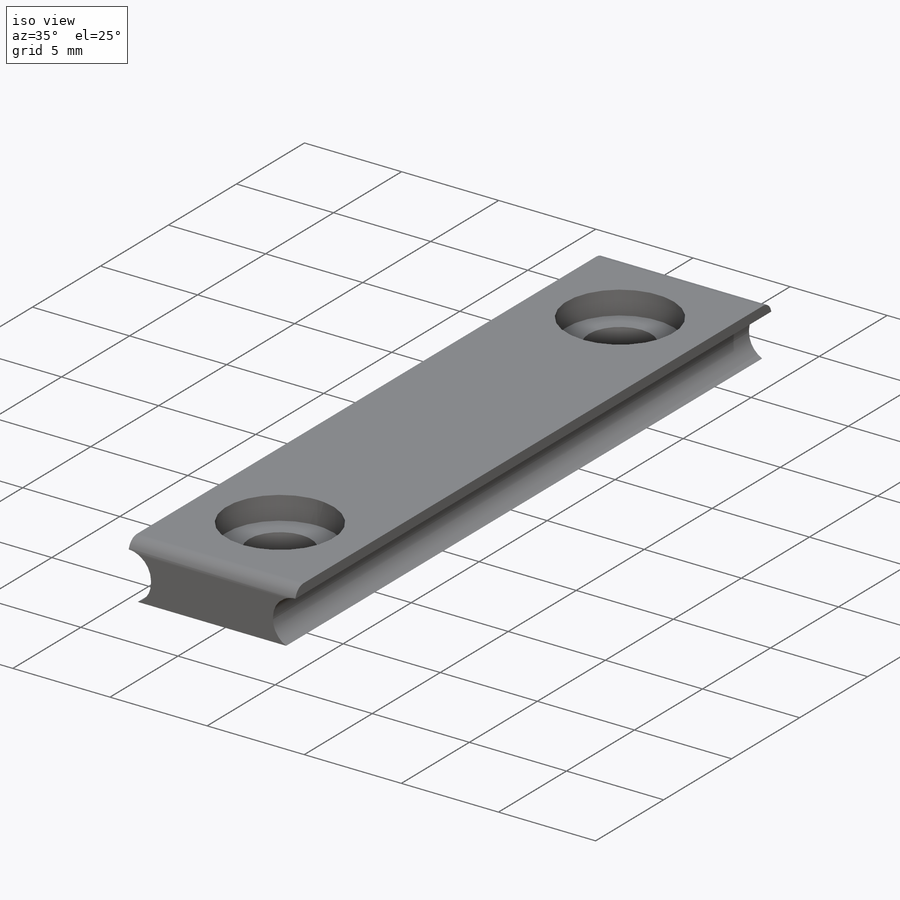
[diagram: iso view]
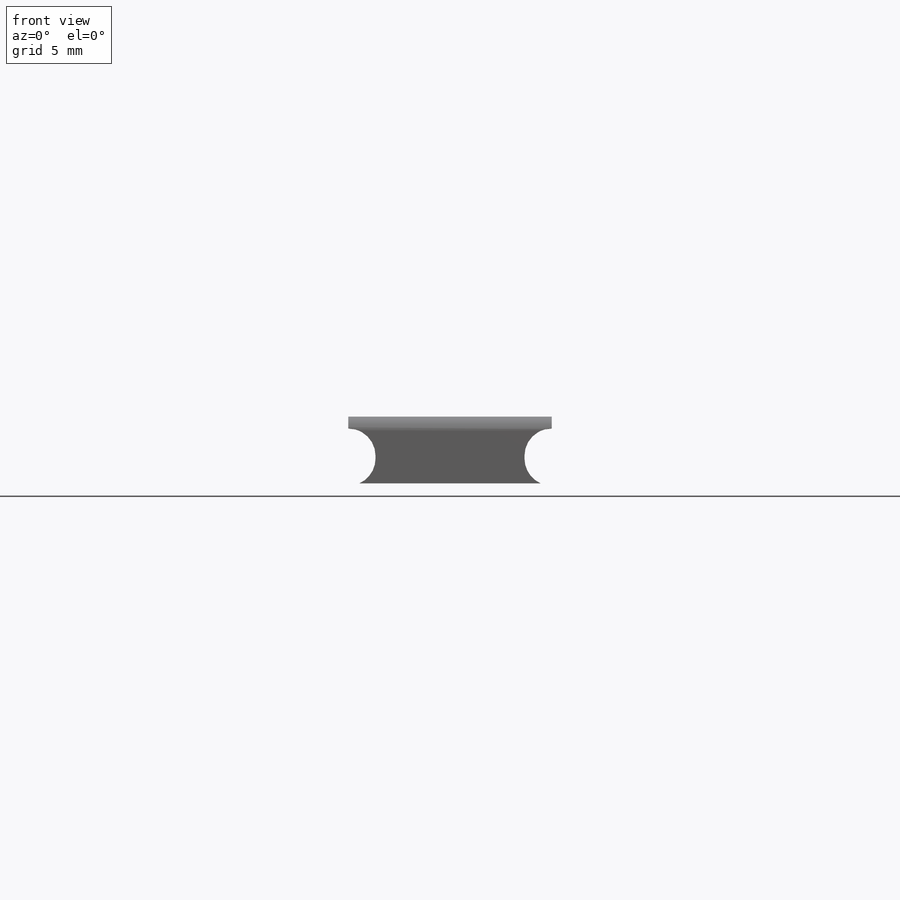
[diagram: front view]
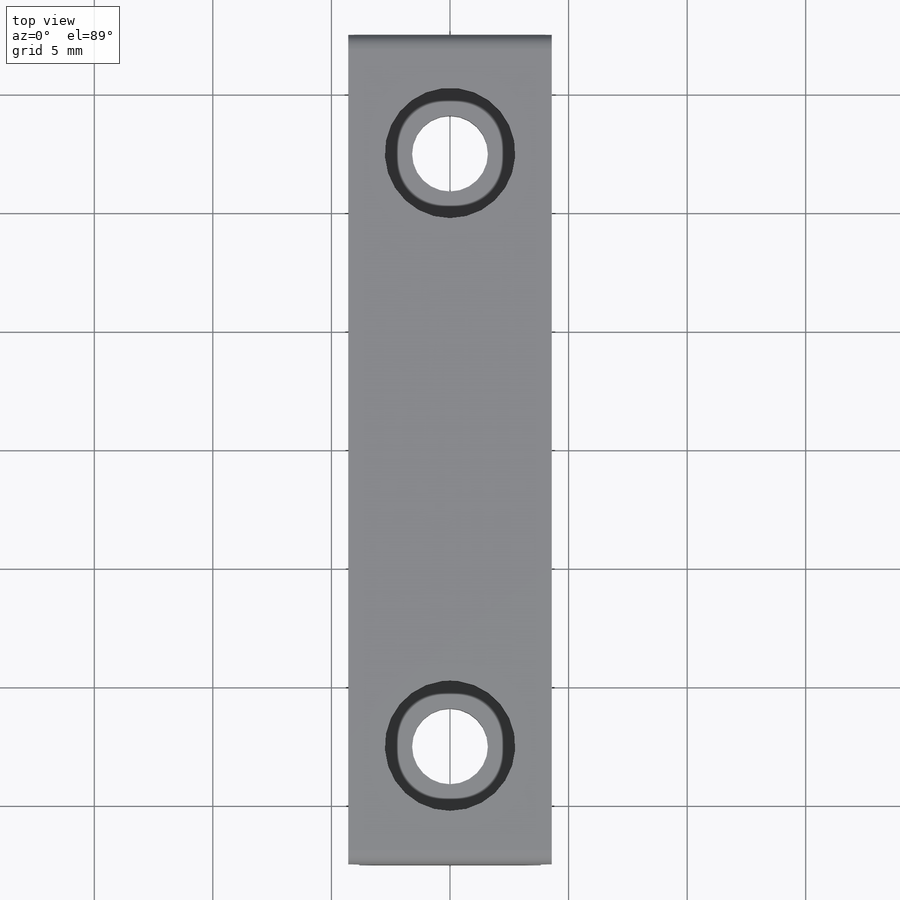
[diagram: top view]
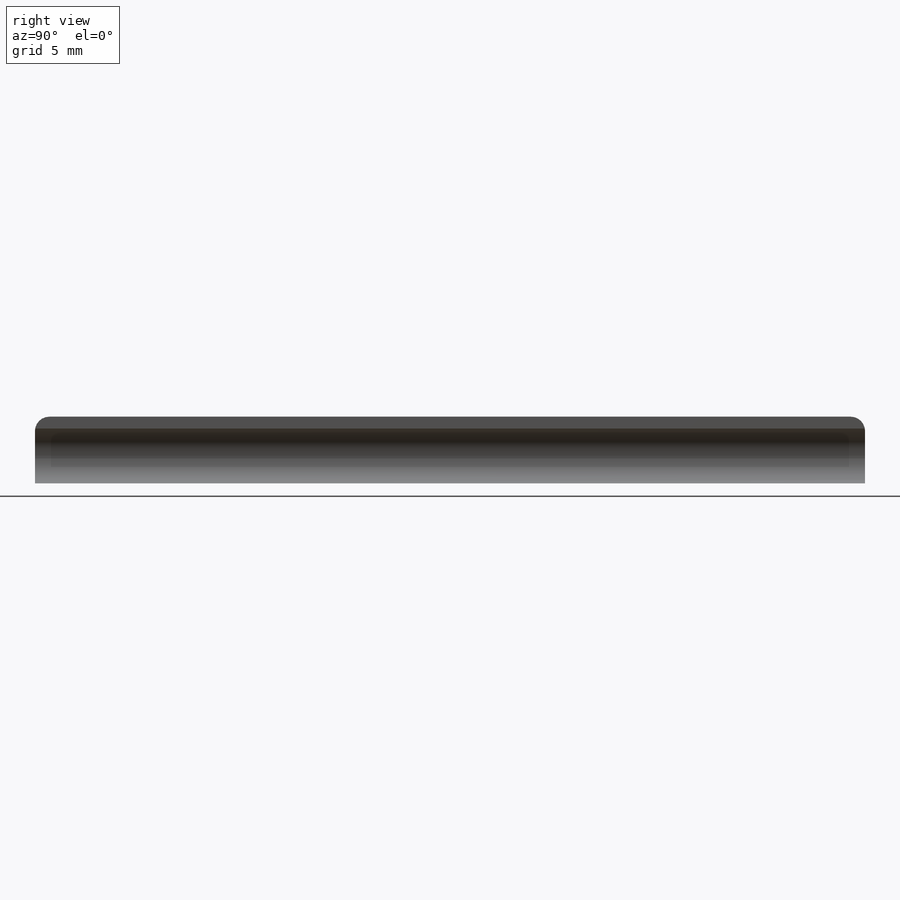
[diagram: right view]
SOLIDWORKS PART (.sldprt)
format: sldprt  version: not decoded by parser v0  size: 210,944 bytes
history: native  units: mm
features: sketch x4, cut_extrude x3, material x1, extrude x1, mirror x1, fillet x1 (+13 scaffold rows collapsed)
feature tree (24):
  scaffold x13  (default folders/planes/origin — collapsed)
  material  "Material <not specified>"
  sketch  "Sketch1"  dims[c1.D5=1.05mm c1.D6=1.05mm c2.D5=1.15mm c2.D1=8.58mm c2.D2=3.41mm c2.D3=0.11mm c2.D4=6.28mm c3.D5=0.6mm]
  extrude  "Boss-Extrude1"  Depth=35mm
  sketch  "Sketch2"  dims[D1=3.2mm D2=5.0mm]
  cut_extrude  "Cut-Extrude1"  [1 undecoded]
  sketch  "Sketch3"  dims[D1=5.5mm]
  cut_extrude  "Cut-Extrude2"  Depth=1.2mm
  mirror  "Mirror1"
  sketch  "Sketch4"
  cut_extrude  "Cut-Extrude3"  Depth=0.6mm
  fillet  "Fillet1"  Radius=0.6mm
decode coverage: 7 of 10 modeling features carry decoded parameters
note: 1 parameter value undecoded
note: suppression state not decoded; provenance and decode notes live in map.json
